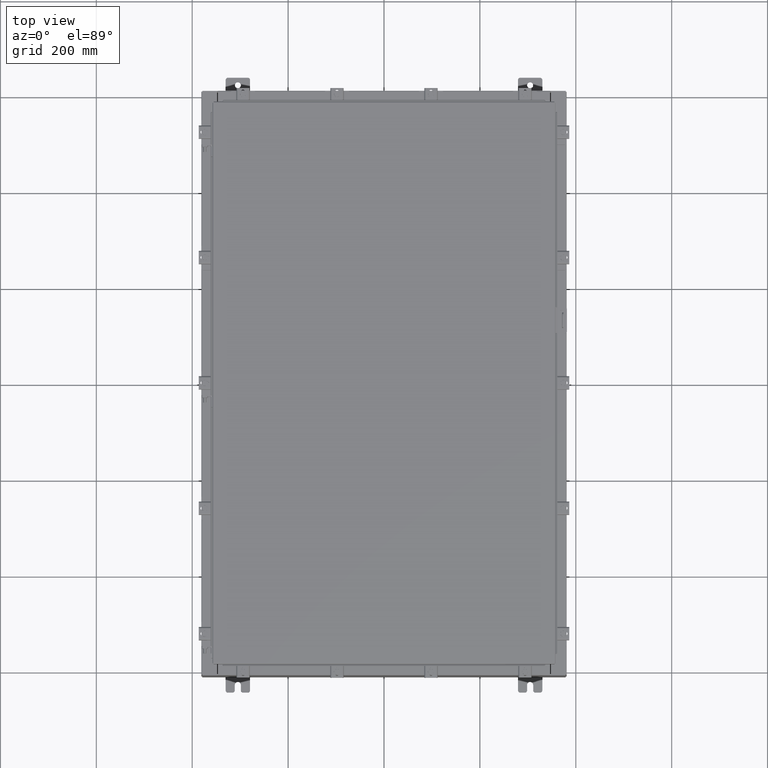
[diagram: clean part render]
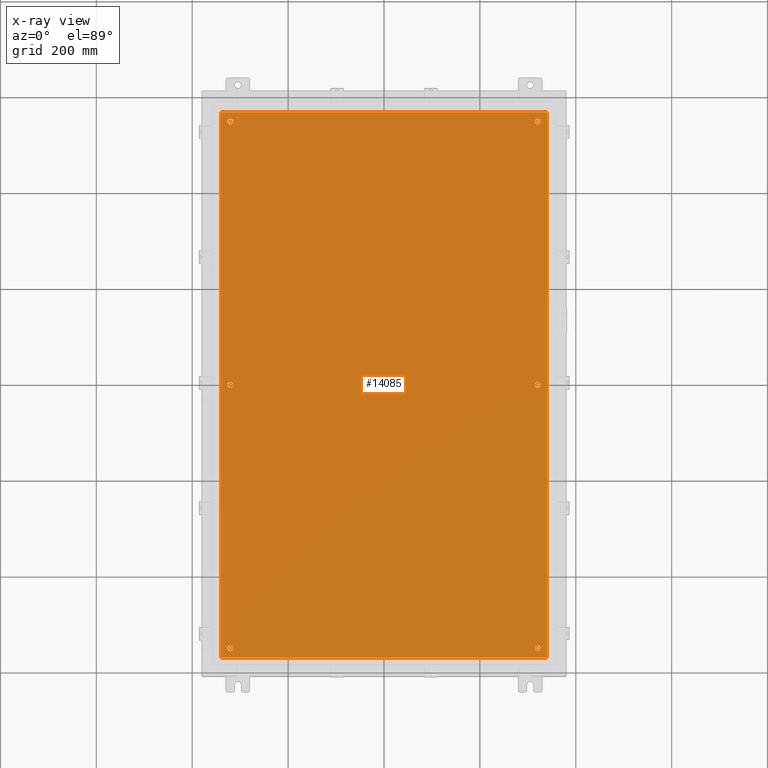
[diagram: x-ray — body ghosted, one internal face saturated and labeled with its STEP entity id]
A machine part, top view, then the same camera in x-ray: the body is ghosted and one INTERNAL B-rep face — a face not visible from any outside direction — is saturated and labeled: STEP entity #14085.
In plain terms, the highlighted planar face has unit normal (0, 0, -1).
Its self-contained STEP definition (entity closure, byte-faithful):
#20 = CARTESIAN_POINT ( 'NONE',  ( -13.38299999999999900, 22.38300000000000300, -0.1040000000000030900 ) ) ;
#128 = ORIENTED_EDGE ( 'NONE', *, *, #4512, .F. ) ;
#377 = VECTOR ( 'NONE', #12792, 39.37007874015748100 ) ;
#418 = DIRECTION ( 'NONE',  ( -0.0000000000000000000, -0.0000000000000000000, 1.000000000000000000 ) ) ;
#807 = ORIENTED_EDGE ( 'NONE', *, *, #19501, .F. ) ;
#915 = CIRCLE ( 'NONE', #19414, 0.2499999999999987000 ) ;
#1090 = DIRECTION ( 'NONE',  ( -0.0000000000000000000, -0.0000000000000000000, 1.000000000000000000 ) ) ;
#1119 = CARTESIAN_POINT ( 'NONE',  ( 12.62500000000000000, 2.262348282635109100E-015, -0.1039999999999999800 ) ) ;
#1156 = DIRECTION ( 'NONE',  ( -0.0000000000000000000, -0.0000000000000000000, 1.000000000000000000 ) ) ;
#1293 = DIRECTION ( 'NONE',  ( -1.000000000000000000, 0.0000000000000000000, 0.0000000000000000000 ) ) ;
#1335 = CIRCLE ( 'NONE', #24395, 0.2499999999999987000 ) ;
#1851 = EDGE_LOOP ( 'NONE', ( #24221, #3393 ) ) ;
#1921 = CARTESIAN_POINT ( 'NONE',  ( 12.62500000000000000, 2.262348282635109100E-015, -0.1039999999999999800 ) ) ;
#1981 = DIRECTION ( 'NONE',  ( -0.0000000000000000000, -0.0000000000000000000, 1.000000000000000000 ) ) ;
#2027 = EDGE_CURVE ( 'NONE', #5338, #13391, #19813, .T. ) ;
#2417 = EDGE_CURVE ( 'NONE', #13834, #13261, #13858, .T. ) ;
#2808 = AXIS2_PLACEMENT_3D ( 'NONE', #1921, #15226, #3849 ) ;
#2991 = AXIS2_PLACEMENT_3D ( 'NONE', #12468, #1090, #14407 ) ;
#3054 = DIRECTION ( 'NONE',  ( -1.000000000000000000, 0.0000000000000000000, 0.0000000000000000000 ) ) ;
#3282 = FACE_BOUND ( 'NONE', #1851, .T. ) ;
#3299 = CIRCLE ( 'NONE', #16525, 0.2500000000000008900 ) ;
#3328 = CARTESIAN_POINT ( 'NONE',  ( 13.38300000000000300, -22.38300000000000300, -0.1040000000000009100 ) ) ;
#3393 = ORIENTED_EDGE ( 'NONE', *, *, #13265, .T. ) ;
#3573 = CARTESIAN_POINT ( 'NONE',  ( 12.62500000000000200, 21.62500000000000400, -0.1039999999999999800 ) ) ;
#3649 = DIRECTION ( 'NONE',  ( -0.0000000000000000000, -0.0000000000000000000, 1.000000000000000000 ) ) ;
#3849 = DIRECTION ( 'NONE',  ( -1.000000000000000000, 0.0000000000000000000, 0.0000000000000000000 ) ) ;
#3889 = FACE_BOUND ( 'NONE', #18046, .T. ) ;
#4512 = EDGE_CURVE ( 'NONE', #15637, #7257, #11089, .T. ) ;
#4770 = AXIS2_PLACEMENT_3D ( 'NONE', #12535, #1156, #14465 ) ;
#4825 = ORIENTED_EDGE ( 'NONE', *, *, #2417, .T. ) ;
#5028 = CARTESIAN_POINT ( 'NONE',  ( 0.0000000000000000000, 0.0000000000000000000, -0.1039999999999999800 ) ) ;
#5167 = ORIENTED_EDGE ( 'NONE', *, *, #12976, .T. ) ;
#5338 = VERTEX_POINT ( 'NONE', #18473 ) ;
#5503 = DIRECTION ( 'NONE',  ( -1.000000000000000000, 0.0000000000000000000, 0.0000000000000000000 ) ) ;
#5528 = AXIS2_PLACEMENT_3D ( 'NONE', #3573, #16863, #5503 ) ;
#5607 = CARTESIAN_POINT ( 'NONE',  ( 12.87500000000000000, 21.62500000000000400, -0.1039999999999999800 ) ) ;
#5639 = LINE ( 'NONE', #10458, #15140 ) ;
#5690 = CARTESIAN_POINT ( 'NONE',  ( -12.37500000000000400, -21.62500000000000400, -0.1039999999999999800 ) ) ;
#6096 = EDGE_LOOP ( 'NONE', ( #8889, #8853 ) ) ;
#6539 = EDGE_CURVE ( 'NONE', #21633, #16973, #16087, .T. ) ;
#6574 = AXIS2_PLACEMENT_3D ( 'NONE', #24049, #12679, #1293 ) ;
#6840 = PLANE ( 'NONE',  #15449 ) ;
#6922 = DIRECTION ( 'NONE',  ( -1.000000000000000000, 0.0000000000000000000, -0.0000000000000000000 ) ) ;
#7209 = DIRECTION ( 'NONE',  ( -0.0000000000000000000, -0.0000000000000000000, 1.000000000000000000 ) ) ;
#7257 = VERTEX_POINT ( 'NONE', #8861 ) ;
#7284 = CIRCLE ( 'NONE', #5528, 0.2499999999999987000 ) ;
#7504 = VERTEX_POINT ( 'NONE', #20 ) ;
#7539 = VERTEX_POINT ( 'NONE', #5690 ) ;
#7577 = ORIENTED_EDGE ( 'NONE', *, *, #12749, .T. ) ;
#7675 = CARTESIAN_POINT ( 'NONE',  ( 12.62500000000000200, -21.62500000000000400, -0.1039999999999999800 ) ) ;
#7881 = EDGE_LOOP ( 'NONE', ( #11447, #807, #10910, #128 ) ) ;
#8104 = EDGE_LOOP ( 'NONE', ( #9166, #5167 ) ) ;
#8334 = FACE_BOUND ( 'NONE', #11603, .T. ) ;
#8566 = VERTEX_POINT ( 'NONE', #14594 ) ;
#8787 = VECTOR ( 'NONE', #10845, 39.37007874015748100 ) ;
#8853 = ORIENTED_EDGE ( 'NONE', *, *, #15398, .T. ) ;
#8861 = CARTESIAN_POINT ( 'NONE',  ( 13.38300000000000300, 22.38300000000000300, -0.1040000000000009100 ) ) ;
#8889 = ORIENTED_EDGE ( 'NONE', *, *, #10870, .T. ) ;
#9166 = ORIENTED_EDGE ( 'NONE', *, *, #12263, .T. ) ;
#9254 = CARTESIAN_POINT ( 'NONE',  ( -12.87500000000000000, -21.62500000000000400, -0.1039999999999999800 ) ) ;
#9275 = ORIENTED_EDGE ( 'NONE', *, *, #9997, .T. ) ;
#9535 = FACE_BOUND ( 'NONE', #8104, .T. ) ;
#9587 = DIRECTION ( 'NONE',  ( -1.000000000000000000, 0.0000000000000000000, 0.0000000000000000000 ) ) ;
#9876 = CARTESIAN_POINT ( 'NONE',  ( 12.87500000000000000, -21.62500000000000400, -0.1039999999999999800 ) ) ;
#9997 = EDGE_CURVE ( 'NONE', #21598, #16356, #7284, .T. ) ;
#10373 = CARTESIAN_POINT ( 'NONE',  ( 12.37500000000000400, 21.62500000000000400, -0.1039999999999999800 ) ) ;
#10458 = CARTESIAN_POINT ( 'NONE',  ( -13.49999999999999500, -22.38300000000000600, -0.1040000000000009400 ) ) ;
#10632 = CARTESIAN_POINT ( 'NONE',  ( -12.62500000000000200, -21.62500000000000400, -0.1039999999999999800 ) ) ;
#10690 = CIRCLE ( 'NONE', #18654, 0.2500000000000008900 ) ;
#10845 = DIRECTION ( 'NONE',  ( 0.0000000000000000000, -1.000000000000000000, 0.0000000000000000000 ) ) ;
#10870 = EDGE_CURVE ( 'NONE', #11673, #8566, #16444, .T. ) ;
#10910 = ORIENTED_EDGE ( 'NONE', *, *, #17160, .F. ) ;
#11089 = LINE ( 'NONE', #3328, #377 ) ;
#11447 = ORIENTED_EDGE ( 'NONE', *, *, #16757, .F. ) ;
#11538 = AXIS2_PLACEMENT_3D ( 'NONE', #15030, #3649, #16929 ) ;
#11603 = EDGE_LOOP ( 'NONE', ( #13584, #9275 ) ) ;
#11673 = VERTEX_POINT ( 'NONE', #18334 ) ;
#11796 = CARTESIAN_POINT ( 'NONE',  ( -12.62500000000000000, -8.298848852119578500E-016, -0.1039999999999999800 ) ) ;
#11981 = CARTESIAN_POINT ( 'NONE',  ( -12.87500000000000000, -7.992687152332741600E-016, -0.1039999999999999800 ) ) ;
#12263 = EDGE_CURVE ( 'NONE', #7539, #12456, #16085, .T. ) ;
#12416 = VECTOR ( 'NONE', #22490, 39.37007874015748100 ) ;
#12431 = CARTESIAN_POINT ( 'NONE',  ( -12.87500000000000000, 21.62500000000000400, -0.1039999999999999800 ) ) ;
#12456 = VERTEX_POINT ( 'NONE', #9254 ) ;
#12468 = CARTESIAN_POINT ( 'NONE',  ( -12.62500000000000200, -21.62500000000000400, -0.1039999999999999800 ) ) ;
#12523 = DIRECTION ( 'NONE',  ( -1.000000000000000000, 0.0000000000000000000, 0.0000000000000000000 ) ) ;
#12535 = CARTESIAN_POINT ( 'NONE',  ( -12.62500000000000000, -8.298848852119578500E-016, -0.1039999999999999800 ) ) ;
#12679 = DIRECTION ( 'NONE',  ( -0.0000000000000000000, -0.0000000000000000000, 1.000000000000000000 ) ) ;
#12749 = EDGE_CURVE ( 'NONE', #13261, #13834, #3299, .T. ) ;
#12792 = DIRECTION ( 'NONE',  ( 0.0000000000000000000, 1.000000000000000000, 0.0000000000000000000 ) ) ;
#12976 = EDGE_CURVE ( 'NONE', #12456, #7539, #24108, .T. ) ;
#13085 = CARTESIAN_POINT ( 'NONE',  ( 13.38300000000000300, -22.38300000000000300, -0.1040000000000009100 ) ) ;
#13261 = VERTEX_POINT ( 'NONE', #22753 ) ;
#13265 = EDGE_CURVE ( 'NONE', #16973, #21633, #915, .T. ) ;
#13362 = CARTESIAN_POINT ( 'NONE',  ( -12.62500000000000200, 21.62500000000000400, -0.1039999999999999800 ) ) ;
#13386 = FACE_BOUND ( 'NONE', #18451, .T. ) ;
#13391 = VERTEX_POINT ( 'NONE', #9876 ) ;
#13584 = ORIENTED_EDGE ( 'NONE', *, *, #19874, .T. ) ;
#13715 = DIRECTION ( 'NONE',  ( -1.000000000000000000, 0.0000000000000000000, 0.0000000000000000000 ) ) ;
#13822 = LINE ( 'NONE', #22223, #8787 ) ;
#13834 = VERTEX_POINT ( 'NONE', #11981 ) ;
#13858 = CIRCLE ( 'NONE', #4770, 0.2500000000000008900 ) ;
#14085 = ADVANCED_FACE ( 'NONE', ( #18435, #3889, #9535, #13386, #8334, #3282, #22893 ), #6840, .T. ) ;
#14407 = DIRECTION ( 'NONE',  ( -1.000000000000000000, 0.0000000000000000000, 0.0000000000000000000 ) ) ;
#14433 = DIRECTION ( 'NONE',  ( -0.0000000000000000000, -0.0000000000000000000, 1.000000000000000000 ) ) ;
#14465 = DIRECTION ( 'NONE',  ( -1.000000000000000000, 0.0000000000000000000, 0.0000000000000000000 ) ) ;
#14594 = CARTESIAN_POINT ( 'NONE',  ( 12.37499999999999800, 2.292964452613792900E-015, -0.1039999999999999800 ) ) ;
#15030 = CARTESIAN_POINT ( 'NONE',  ( 12.62500000000000200, 21.62500000000000400, -0.1039999999999999800 ) ) ;
#15140 = VECTOR ( 'NONE', #21925, 39.37007874015748100 ) ;
#15226 = DIRECTION ( 'NONE',  ( -0.0000000000000000000, -0.0000000000000000000, 1.000000000000000000 ) ) ;
#15286 = DIRECTION ( 'NONE',  ( -1.000000000000000000, 0.0000000000000000000, 0.0000000000000000000 ) ) ;
#15398 = EDGE_CURVE ( 'NONE', #8566, #11673, #10690, .T. ) ;
#15449 = AXIS2_PLACEMENT_3D ( 'NONE', #5028, #18295, #6922 ) ;
#15637 = VERTEX_POINT ( 'NONE', #13085 ) ;
#16085 = CIRCLE ( 'NONE', #2991, 0.2499999999999987000 ) ;
#16087 = CIRCLE ( 'NONE', #6574, 0.2499999999999987000 ) ;
#16356 = VERTEX_POINT ( 'NONE', #5607 ) ;
#16444 = CIRCLE ( 'NONE', #2808, 0.2500000000000008900 ) ;
#16525 = AXIS2_PLACEMENT_3D ( 'NONE', #11796, #418, #13715 ) ;
#16757 = EDGE_CURVE ( 'NONE', #23465, #15637, #5639, .T. ) ;
#16863 = DIRECTION ( 'NONE',  ( -0.0000000000000000000, -0.0000000000000000000, 1.000000000000000000 ) ) ;
#16929 = DIRECTION ( 'NONE',  ( -1.000000000000000000, 0.0000000000000000000, 0.0000000000000000000 ) ) ;
#16973 = VERTEX_POINT ( 'NONE', #12431 ) ;
#17160 = EDGE_CURVE ( 'NONE', #7257, #7504, #22539, .T. ) ;
#17329 = AXIS2_PLACEMENT_3D ( 'NONE', #10632, #23896, #12523 ) ;
#18046 = EDGE_LOOP ( 'NONE', ( #7577, #4825 ) ) ;
#18295 = DIRECTION ( 'NONE',  ( 0.0000000000000000000, 0.0000000000000000000, -1.000000000000000000 ) ) ;
#18334 = CARTESIAN_POINT ( 'NONE',  ( 12.87500000000000000, 2.262348282635109100E-015, -0.1039999999999999800 ) ) ;
#18435 = FACE_BOUND ( 'NONE', #6096, .T. ) ;
#18437 = AXIS2_PLACEMENT_3D ( 'NONE', #7675, #20967, #9587 ) ;
#18451 = EDGE_LOOP ( 'NONE', ( #21382, #23744 ) ) ;
#18473 = CARTESIAN_POINT ( 'NONE',  ( 12.37500000000000400, -21.62500000000000400, -0.1039999999999999800 ) ) ;
#18571 = CIRCLE ( 'NONE', #11538, 0.2499999999999987000 ) ;
#18594 = CARTESIAN_POINT ( 'NONE',  ( 12.62500000000000200, -21.62500000000000400, -0.1039999999999999800 ) ) ;
#18654 = AXIS2_PLACEMENT_3D ( 'NONE', #1119, #14433, #3054 ) ;
#19108 = EDGE_CURVE ( 'NONE', #13391, #5338, #1335, .T. ) ;
#19414 = AXIS2_PLACEMENT_3D ( 'NONE', #13362, #1981, #15286 ) ;
#19501 = EDGE_CURVE ( 'NONE', #7504, #23465, #13822, .T. ) ;
#19813 = CIRCLE ( 'NONE', #18437, 0.2499999999999987000 ) ;
#19874 = EDGE_CURVE ( 'NONE', #16356, #21598, #18571, .T. ) ;
#20367 = CARTESIAN_POINT ( 'NONE',  ( -13.38299999999999900, -22.38300000000000600, -0.1040000000000009400 ) ) ;
#20501 = DIRECTION ( 'NONE',  ( -1.000000000000000000, 0.0000000000000000000, 0.0000000000000000000 ) ) ;
#20584 = CARTESIAN_POINT ( 'NONE',  ( 13.50000000000000400, 22.38299999999999900, -0.1040000000000009400 ) ) ;
#20967 = DIRECTION ( 'NONE',  ( -0.0000000000000000000, -0.0000000000000000000, 1.000000000000000000 ) ) ;
#21382 = ORIENTED_EDGE ( 'NONE', *, *, #19108, .T. ) ;
#21598 = VERTEX_POINT ( 'NONE', #10373 ) ;
#21633 = VERTEX_POINT ( 'NONE', #21832 ) ;
#21832 = CARTESIAN_POINT ( 'NONE',  ( -12.37500000000000400, 21.62500000000000400, -0.1039999999999999800 ) ) ;
#21925 = DIRECTION ( 'NONE',  ( 1.000000000000000000, -0.0000000000000000000, -0.0000000000000000000 ) ) ;
#22223 = CARTESIAN_POINT ( 'NONE',  ( -13.38299999999999900, 22.38300000000000300, -0.1040000000000030900 ) ) ;
#22490 = DIRECTION ( 'NONE',  ( -1.000000000000000000, -0.0000000000000000000, -0.0000000000000000000 ) ) ;
#22539 = LINE ( 'NONE', #20584, #12416 ) ;
#22753 = CARTESIAN_POINT ( 'NONE',  ( -12.37499999999999800, -8.298848852119578500E-016, -0.1039999999999999800 ) ) ;
#22893 = FACE_OUTER_BOUND ( 'NONE', #7881, .T. ) ;
#23465 = VERTEX_POINT ( 'NONE', #20367 ) ;
#23744 = ORIENTED_EDGE ( 'NONE', *, *, #2027, .T. ) ;
#23896 = DIRECTION ( 'NONE',  ( -0.0000000000000000000, -0.0000000000000000000, 1.000000000000000000 ) ) ;
#24049 = CARTESIAN_POINT ( 'NONE',  ( -12.62500000000000200, 21.62500000000000400, -0.1039999999999999800 ) ) ;
#24108 = CIRCLE ( 'NONE', #17329, 0.2499999999999987000 ) ;
#24221 = ORIENTED_EDGE ( 'NONE', *, *, #6539, .T. ) ;
#24395 = AXIS2_PLACEMENT_3D ( 'NONE', #18594, #7209, #20501 ) ;